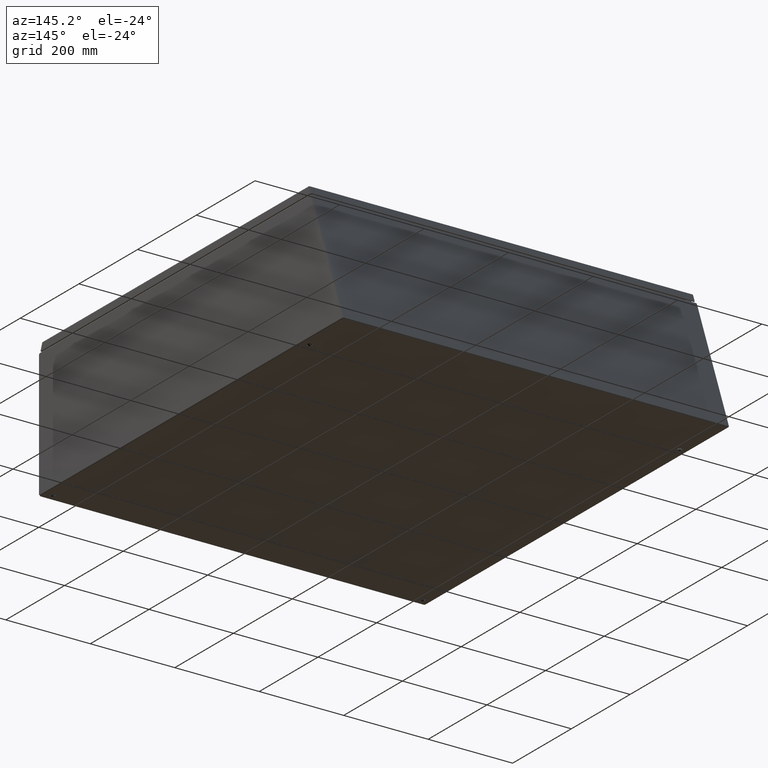
[diagram: clean part render]
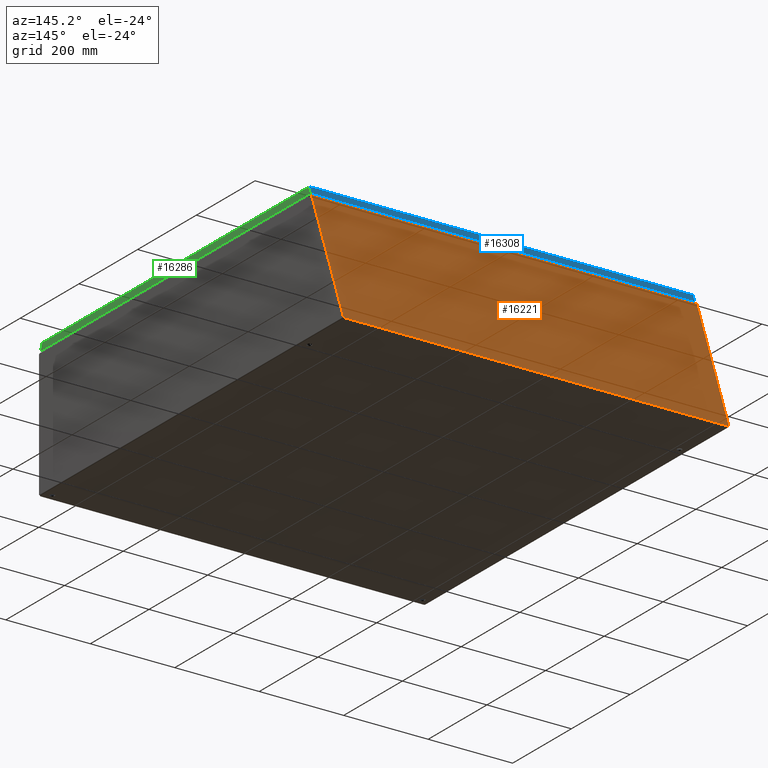
[diagram: same view with three faces highlighted in distinct colors, each labeled with its STEP entity id]
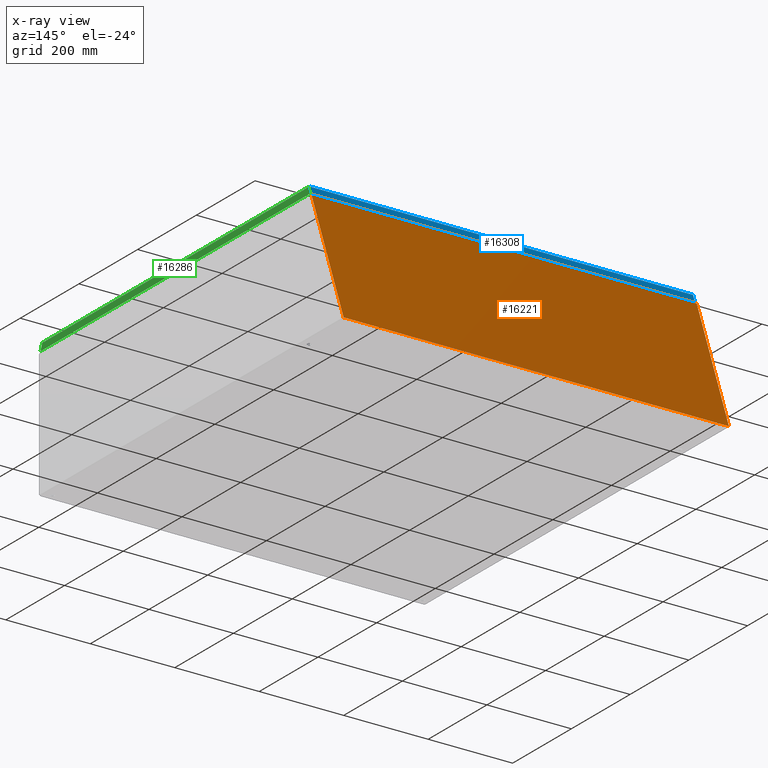
[diagram: x-ray of the same camera — body ghosted, the three highlighted faces saturated]
A machine part, auxiliary view with three faces highlighted in distinct colors.
The next image is the same camera in x-ray (body ghosted, the three faces saturated) — at least one of them is partly hidden behind the body in this view.
Their STEP definitions:

[orange] entity #16221 — the highlighted planar face has unit normal (0, 0.9397, 0.342).
#569=PLANE('',#17505);
#1597=LINE('',#31248,#2824);
#1639=LINE('',#31460,#2866);
#1649=LINE('',#31483,#2876);
#1650=LINE('',#31485,#2877);
#1651=LINE('',#31486,#2878);
#1652=LINE('',#31487,#2879);
#2824=VECTOR('',#20335,0.0156414013518166);
#2866=VECTOR('',#20409,0.0370000000000008);
#2876=VECTOR('',#20439,12.6113762853512);
#2877=VECTOR('',#20440,35.926);
#2878=VECTOR('',#20441,12.6224364263144);
#2879=VECTOR('',#20442,35.8779398590369);
#4376=FACE_OUTER_BOUND('',#5531,.T.);
#5531=EDGE_LOOP('',(#12460,#12461,#12462,#12463,#12464,#12465));
#7389=VERTEX_POINT('',#31190);
#7397=VERTEX_POINT('',#31246);
#7435=VERTEX_POINT('',#31458);
#7436=VERTEX_POINT('',#31462);
#7438=VERTEX_POINT('',#31482);
#7439=VERTEX_POINT('',#31484);
#9153=EDGE_CURVE('',#7389,#7397,#1597,.T.);
#9207=EDGE_CURVE('',#7397,#7435,#1639,.T.);
#9219=EDGE_CURVE('',#7438,#7435,#1649,.T.);
#9220=EDGE_CURVE('',#7439,#7438,#1650,.T.);
#9221=EDGE_CURVE('',#7436,#7439,#1651,.T.);
#9222=EDGE_CURVE('',#7436,#7389,#1652,.T.);
#12460=ORIENTED_EDGE('',*,*,#9153,.T.);
#12461=ORIENTED_EDGE('',*,*,#9207,.T.);
#12462=ORIENTED_EDGE('',*,*,#9219,.F.);
#12463=ORIENTED_EDGE('',*,*,#9220,.F.);
#12464=ORIENTED_EDGE('',*,*,#9221,.F.);
#12465=ORIENTED_EDGE('',*,*,#9222,.T.);
#16221=ADVANCED_FACE('',(#4376),#569,.T.);
#17505=AXIS2_PLACEMENT_3D('',#31481,#20437,#20438);
#20335=DIRECTION('',(0.707106781186547,0.707106781186548,0.));
#20409=DIRECTION('',(1.,1.8901434766974E-014,0.));
#20437=DIRECTION('center_axis',(0.,0.,1.));
#20438=DIRECTION('ref_axis',(1.,0.,0.));
#20439=DIRECTION('',(0.,-1.,0.));
#20440=DIRECTION('',(1.,3.89329781427407E-017,0.));
#20441=DIRECTION('',(0.,1.,0.));
#20442=DIRECTION('',(1.,1.16798934428222E-016,0.));
#31190=CARTESIAN_POINT('',(17.9149398590369,-6.2743697914589,0.074));
#31246=CARTESIAN_POINT('',(17.926,-6.26330965049577,0.074));
#31248=CARTESIAN_POINT('',(15.0103274126239,-9.17898223787182,0.074));
#31458=CARTESIAN_POINT('',(17.963,-6.26330965049577,0.074));
#31460=CARTESIAN_POINT('',(8.98150000000006,-6.26330965049593,0.074));
#31462=CARTESIAN_POINT('',(-17.963,-6.2743697914589,0.074));
#31481=CARTESIAN_POINT('Origin',(0.,1.3987061727561E-015,0.074));
#31482=CARTESIAN_POINT('',(17.963,6.34806663485547,0.074));
#31483=CARTESIAN_POINT('',(17.963,6.34806663485547,0.074));
#31484=CARTESIAN_POINT('',(-17.963,6.34806663485547,0.074));
#31485=CARTESIAN_POINT('',(-17.963,6.34806663485547,0.074));
#31486=CARTESIAN_POINT('',(-17.963,-6.34806663485547,0.074));
#31487=CARTESIAN_POINT('',(-8.9815,-6.2743697914589,0.074));

[blue] entity #16308 — the highlighted planar face has unit normal (-0, 0.9397, 0.342).
#619=PLANE('',#17603);
#1759=LINE('',#31856,#2986);
#1783=LINE('',#32158,#3010);
#1785=LINE('',#32204,#3012);
#1791=LINE('',#32338,#3018);
#2986=VECTOR('',#20713,0.676219133175152);
#3010=VECTOR('',#20759,35.7255857864376);
#3012=VECTOR('',#20763,0.676219133175152);
#3018=VECTOR('',#20775,35.7255857864377);
#4463=FACE_OUTER_BOUND('',#5624,.T.);
#5624=EDGE_LOOP('',(#12838,#12839,#12840,#12841));
#7534=VERTEX_POINT('',#31853);
#7535=VERTEX_POINT('',#31855);
#7553=VERTEX_POINT('',#32157);
#7555=VERTEX_POINT('',#32203);
#9362=EDGE_CURVE('',#7534,#7535,#1759,.T.);
#9402=EDGE_CURVE('',#7553,#7534,#1783,.T.);
#9406=EDGE_CURVE('',#7553,#7555,#1785,.T.);
#9415=EDGE_CURVE('',#7555,#7535,#1791,.T.);
#12838=ORIENTED_EDGE('',*,*,#9415,.T.);
#12839=ORIENTED_EDGE('',*,*,#9362,.F.);
#12840=ORIENTED_EDGE('',*,*,#9402,.F.);
#12841=ORIENTED_EDGE('',*,*,#9406,.T.);
#16308=ADVANCED_FACE('',(#4463),#619,.T.);
#17603=AXIS2_PLACEMENT_3D('',#32340,#20777,#20778);
#20713=DIRECTION('',(4.96421152541562E-014,-0.342020143325668,0.939692620785909));
#20759=DIRECTION('',(1.,0.,0.));
#20763=DIRECTION('',(-1.03421073446159E-015,-0.342020143325668,0.939692620785908));
#20775=DIRECTION('',(1.,-4.23404988899422E-035,-1.54106812999201E-035));
#20777=DIRECTION('center_axis',(4.50578177942175E-035,0.939692620785909,
0.342020143325668));
#20778=DIRECTION('ref_axis',(1.,0.,0.));
#31853=CARTESIAN_POINT('',(35.361658870313,0.756636136417681,-0.630690509393907));
#31855=CARTESIAN_POINT('',(35.361658870313,0.525355571569556,0.0047476200850264));
#31856=CARTESIAN_POINT('',(35.361658870313,0.525355571569556,0.00474762008502651));
#32157=CARTESIAN_POINT('',(-0.363926916124628,0.756636136417681,-0.630690509393907));
#32158=CARTESIAN_POINT('',(-102.231467255018,0.756636136417681,-0.630690509393907));
#32203=CARTESIAN_POINT('',(-0.363926916124626,0.525355571569556,0.00474762008502648));
#32204=CARTESIAN_POINT('',(-0.363926916124628,0.525355571569556,0.00474762008502704));
#32338=CARTESIAN_POINT('',(17.4988659770942,0.525355571569556,0.0047476200850265));
#32340=CARTESIAN_POINT('Origin',(17.4988659770942,0.631328327568006,-0.286410134098089));

[green] entity #16286 — the highlighted planar face has unit normal (1, -0, -0).
#611=PLANE('',#17591);
#1745=LINE('',#31744,#2972);
#1766=LINE('',#31914,#2993);
#1771=LINE('',#31964,#2998);
#1772=LINE('',#31965,#2999);
#2972=VECTOR('',#20689,35.711362449348);
#2993=VECTOR('',#20724,0.664845063354345);
#2998=VECTOR('',#20733,36.1661432570636);
#2999=VECTOR('',#20734,0.664845063354348);
#4441=FACE_OUTER_BOUND('',#5602,.T.);
#5602=EDGE_LOOP('',(#12729,#12730,#12731,#12732));
#7517=VERTEX_POINT('',#31734);
#7519=VERTEX_POINT('',#31743);
#7539=VERTEX_POINT('',#31912);
#7542=VERTEX_POINT('',#31963);
#9339=EDGE_CURVE('',#7519,#7517,#1745,.T.);
#9372=EDGE_CURVE('',#7539,#7517,#1766,.T.);
#9377=EDGE_CURVE('',#7539,#7542,#1771,.T.);
#9378=EDGE_CURVE('',#7519,#7542,#1772,.T.);
#12729=ORIENTED_EDGE('',*,*,#9372,.F.);
#12730=ORIENTED_EDGE('',*,*,#9377,.T.);
#12731=ORIENTED_EDGE('',*,*,#9378,.F.);
#12732=ORIENTED_EDGE('',*,*,#9339,.T.);
#16286=ADVANCED_FACE('',(#4441),#611,.T.);
#17591=AXIS2_PLACEMENT_3D('',#31962,#20731,#20732);
#20689=DIRECTION('',(-2.0520658907116E-021,-1.,1.05585184319865E-034));
#20724=DIRECTION('',(4.83521262168885E-014,0.342020143325674,0.939692620785907));
#20731=DIRECTION('center_axis',(1.,-2.0520658907116E-021,-5.14552572250718E-014));
#20732=DIRECTION('ref_axis',(-5.41433564649196E-014,0.,-1.));
#20733=DIRECTION('',(0.,1.,0.));
#20734=DIRECTION('',(-4.83521248131929E-014,0.342020143325669,-0.939692620785908));
#31734=CARTESIAN_POINT('',(35.4363659770942,-35.2524064580456,-0.0312499999999807));
#31743=CARTESIAN_POINT('',(35.4363659770942,0.458955991302406,-0.0312499999999808));
#31744=CARTESIAN_POINT('',(35.4363659770942,-17.3967252333716,-0.0312499999999995));
#31912=CARTESIAN_POINT('',(35.4363659770942,-35.4797968619034,-0.656000000000004));
#31914=CARTESIAN_POINT('',(35.4363659770943,-34.3092527550025,2.56004350218588));
#31962=CARTESIAN_POINT('Origin',(35.4363659770942,-17.3967252333716,-0.307283056183282));
#31963=CARTESIAN_POINT('',(35.4363659770942,0.686346395160215,-0.656000000000004));
#31964=CARTESIAN_POINT('',(35.4363659770942,-137.193934125891,-0.656000000000005));
#31965=CARTESIAN_POINT('',(35.4363659770943,-0.484197711740669,2.56004350218585));